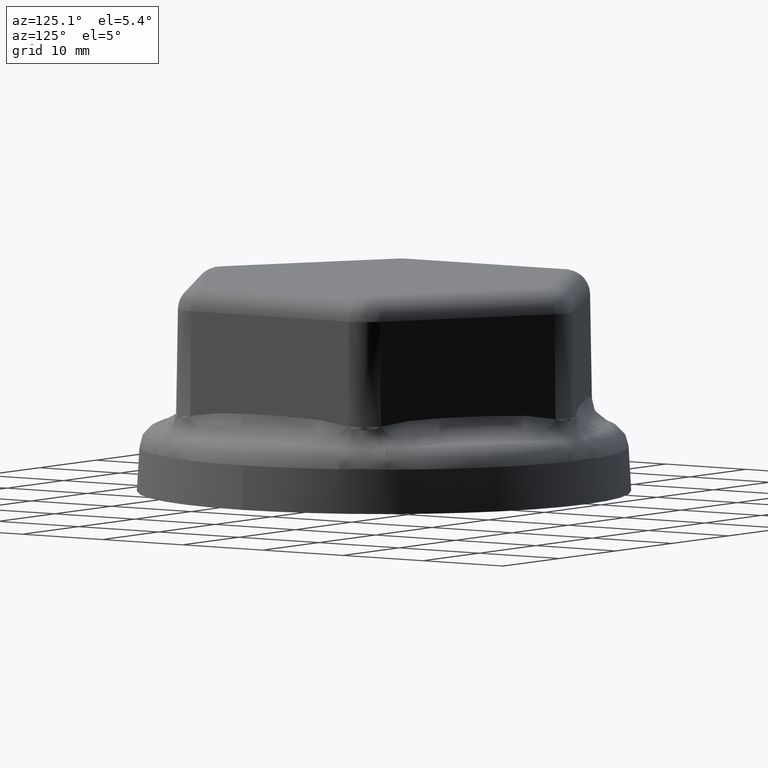
[diagram: clean part render]
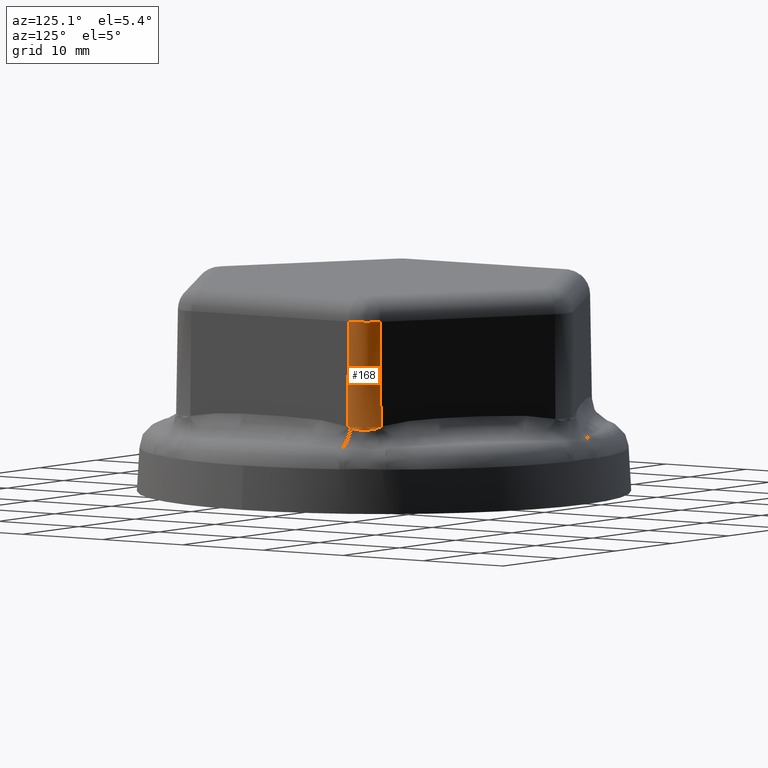
[diagram: same view with one face highlighted and labeled with its STEP entity id]
A machine part, auxiliary view. The second image highlights one B-rep face of the part: STEP entity #168.
In plain terms, the highlighted face is a freeform B-spline surface patch.
Its self-contained STEP definition (entity closure, byte-faithful):
#168 = ADVANCED_FACE( '', ( #395 ), #396, .T. );
#395 = FACE_OUTER_BOUND( '', #3700, .T. );
#396 = B_SPLINE_SURFACE_WITH_KNOTS( '', 1, 3, ( ( #3701, #3702, #3703, #3704 ), ( #3705, #3706, #3707, #3708 ) ), .UNSPECIFIED., .F., .F., .F., ( 2, 2 ), ( 4, 4 ), ( 0.000000000000000, 1.00000000000000 ), ( 3.00000000000000, 7.00000000000000 ), .UNSPECIFIED. );
#3700 = EDGE_LOOP( '', ( #6056, #6057, #6058, #6059, #6060, #6061, #6062, #6063 ) );
#3701 = CARTESIAN_POINT( '', ( 18.7500761524218, 12.8459995228479, 4.40000000000000 ) );
#3702 = CARTESIAN_POINT( '', ( 19.8228869108241, 12.2266119374674, 4.40000000000000 ) );
#3703 = CARTESIAN_POINT( '', ( 20.4999999954851, 11.0538176723918, 4.40000000000000 ) );
#3704 = CARTESIAN_POINT( '', ( 20.5000000000000, 9.81504250946615, 4.40000000000000 ) );
#3705 = CARTESIAN_POINT( '', ( 18.5667979706755, 12.5285524001445, 25.4000000000000 ) );
#3706 = CARTESIAN_POINT( '', ( 19.5272110351913, 11.9740576539199, 25.4000000000000 ) );
#3707 = CARTESIAN_POINT( '', ( 20.1334436322838, 10.9240319945822, 25.3999999999957 ) );
#3708 = CARTESIAN_POINT( '', ( 20.1334436365074, 9.81504250946614, 25.4000000000000 ) );
#6056 = ORIENTED_EDGE( '', *, *, #6505, .T. );
#6057 = ORIENTED_EDGE( '', *, *, #6508, .T. );
#6058 = ORIENTED_EDGE( '', *, *, #6513, .T. );
#6059 = ORIENTED_EDGE( '', *, *, #6514, .T. );
#6060 = ORIENTED_EDGE( '', *, *, #6515, .T. );
#6061 = ORIENTED_EDGE( '', *, *, #6516, .T. );
#6062 = ORIENTED_EDGE( '', *, *, #6517, .F. );
#6063 = ORIENTED_EDGE( '', *, *, #6518, .T. );
#6505 = EDGE_CURVE( '', #6976, #6969, #6977, .T. );
#6508 = EDGE_CURVE( '', #6969, #6979, #6981, .T. );
#6513 = EDGE_CURVE( '', #6979, #6988, #6989, .T. );
#6514 = EDGE_CURVE( '', #6988, #6990, #6991, .T. );
#6515 = EDGE_CURVE( '', #6990, #6992, #6993, .T. );
#6516 = EDGE_CURVE( '', #6992, #6994, #6995, .T. );
#6517 = EDGE_CURVE( '', #6996, #6994, #6997, .T. );
#6518 = EDGE_CURVE( '', #6996, #6976, #6998, .T. );
#6969 = VERTEX_POINT( '', #8845 );
#6976 = VERTEX_POINT( '', #8899 );
#6977 = LINE( '', #8900, #8901 );
#6979 = VERTEX_POINT( '', #8904 );
#6981 = B_SPLINE_CURVE_WITH_KNOTS( '', 3, ( #8906, #8907, #8908, #8909, #8910, #8911, #8912, #8913, #8914, #8915 ), .UNSPECIFIED., .F., .F., ( 4, 2, 1, 1, 1, 1, 4 ), ( -5.99999999935720E-008, 1.25401792727392E-005, 2.51403585454720E-005, 5.03407170909395E-005, 0.000100741434181876, 0.000201542868363748, 0.000403145736727491 ), .UNSPECIFIED. );
#6988 = VERTEX_POINT( '', #8969 );
#6989 = B_SPLINE_CURVE_WITH_KNOTS( '', 3, ( #8970, #8971, #8972, #8973, #8974 ), .UNSPECIFIED., .F., .F., ( 4, 1, 4 ), ( 0.000000000000000, 0.000129380528995710, 0.000258761057991419 ), .UNSPECIFIED. );
#6990 = VERTEX_POINT( '', #8975 );
#6991 = B_SPLINE_CURVE_WITH_KNOTS( '', 3, ( #8976, #8977, #8978, #8979, #8980, #8981, #8982, #8983, #8984, #8985, #8986, #8987, #8988, #8989, #8990, #8991, #8992, #8993, #8994, #8995, #8996, #8997, #8998, #8999, #9000, #9001, #9002, #9003, #9004, #9005, #9006, #9007, #9008, #9009 ), .UNSPECIFIED., .F., .F., ( 4, 2, 2, 1, 2, 2, 1, 2, 2, 2, 2, 1, 2, 1, 2, 2, 2, 2, 4 ), ( 0.000000000000000, 0.000147019453226438, 0.000294038906452876, 0.000441058359679314, 0.000588077812905753, 0.000661587539518973, 0.000735097266132193, 0.000882116719358638, 0.00102913617258508, 0.00117615562581153, 0.00147019453226442, 0.00161721398549088, 0.00176423343871733, 0.00183774316533055, 0.00187449802863717, 0.00191125289194379, 0.00205827234517028, 0.00220529179839676, 0.00235231125162325 ), .UNSPECIFIED. );
#6992 = VERTEX_POINT( '', #9010 );
#6993 = B_SPLINE_CURVE_WITH_KNOTS( '', 3, ( #9011, #9012, #9013, #9014, #9015 ), .UNSPECIFIED., .F., .F., ( 4, 1, 4 ), ( 0.000000000000000, 0.000129380529179010, 0.000258761058358020 ), .UNSPECIFIED. );
#6994 = VERTEX_POINT( '', #9016 );
#6995 = B_SPLINE_CURVE_WITH_KNOTS( '', 3, ( #9017, #9018, #9019, #9020, #9021, #9022, #9023, #9024, #9025, #9026, #9027 ), .UNSPECIFIED., .F., .F., ( 4, 2, 1, 1, 1, 2, 4 ), ( 0.000000000000000, 0.000201602868358575, 0.000302404302537861, 0.000352805019627504, 0.000378005378172319, 0.000390605557444727, 0.000403205736717134 ), .UNSPECIFIED. );
#6996 = VERTEX_POINT( '', #9028 );
#6997 = LINE( '', #9029, #9030 );
#6998 = B_SPLINE_CURVE_WITH_KNOTS( '', 3, ( #9031, #9032, #9033, #9034, #9035, #9036, #9037, #9038, #9039, #9040, #9041, #9042, #9043, #9044, #9045, #9046, #9047, #9048, #9049, #9050, #9051, #9052, #9053, #9054, #9055, #9056, #9057, #9058, #9059, #9060, #9061, #9062, #9063, #9064 ), .UNSPECIFIED., .F., .F., ( 4, 2, 1, 1, 1, 1, 1, 1, 1, 1, 1, 1, 2, 2, 1, 1, 1, 1, 1, 2, 2, 1, 1, 1, 1, 1, 4 ), ( -5.99999999915316E-008, 1.58686226520862E-006, 3.23372453040877E-006, 6.52744906081164E-006, 1.31148981216262E-005, 2.62897962432580E-005, 5.26395924865242E-005, 0.000105339184973068, 0.000210738369946156, 0.000421536739892340, 0.000632335109838524, 0.000843133479784708, 0.00105393184973089, 0.00110663144221744, 0.00115933103470399, 0.00126473021967708, 0.00147552858962326, 0.00168632695956944, 0.00189712532951562, 0.00210792369946181, 0.00221332288443490, 0.00231872206940799, 0.00252952043935418, 0.00274031880930036, 0.00295111717924654, 0.00316191554919273, 0.00337271391913891 ), .UNSPECIFIED. );
#8845 = CARTESIAN_POINT( '', ( 20.4245881498570, 9.81504250919130, 8.72034200119673 ) );
#8899 = CARTESIAN_POINT( '', ( 20.2374124438580, 9.81504250850911, 19.4436310160924 ) );
#8900 = CARTESIAN_POINT( '', ( 20.5000000000000, 9.81504250946615, 4.40000000000000 ) );
#8901 = VECTOR( '', #9774, 1000.00000000000 );
#8904 = CARTESIAN_POINT( '', ( 20.4056246553358, 10.1926601192659, 8.58027017000773 ) );
#8906 = CARTESIAN_POINT( '', ( 20.4245881498598, 9.81504250946615, 8.72034200103530 ) );
#8907 = CARTESIAN_POINT( '', ( 20.4246146984334, 9.81895675369825, 8.71881934242879 ) );
#8908 = CARTESIAN_POINT( '', ( 20.4246344300040, 9.82288328763254, 8.71729355520004 ) );
#8909 = CARTESIAN_POINT( '', ( 20.4246598331519, 9.83072490528885, 8.71424993195695 ) );
#8910 = CARTESIAN_POINT( '', ( 20.4246770591625, 9.84248810078313, 8.70968939741008 ) );
#8911 = CARTESIAN_POINT( '', ( 20.4245710738748, 9.86994128119892, 8.69908337602101 ) );
#8912 = CARTESIAN_POINT( '', ( 20.4237740337628, 9.92487326431368, 8.67801963146293 ) );
#8913 = CARTESIAN_POINT( '', ( 20.4198348898030, 10.0348614990073, 8.63654469823896 ) );
#8914 = CARTESIAN_POINT( '', ( 20.4124158336221, 10.1294241564701, 8.60231596088999 ) );
#8915 = CARTESIAN_POINT( '', ( 20.4056246553357, 10.1926601192656, 8.58027017000722 ) );
#8969 = CARTESIAN_POINT( '', ( 20.3699417653243, 10.4379299291018, 8.50592814369450 ) );
#8970 = CARTESIAN_POINT( '', ( 20.4056246553358, 10.1926601192659, 8.58027017000773 ) );
#8971 = CARTESIAN_POINT( '', ( 20.4012668892831, 10.2332373976643, 8.56612381792238 ) );
#8972 = CARTESIAN_POINT( '', ( 20.3910032599094, 10.3146482322465, 8.53941968745791 ) );
#8973 = CARTESIAN_POINT( '', ( 20.3775250396434, 10.3967026371197, 8.51638177742967 ) );
#8974 = CARTESIAN_POINT( '', ( 20.3699417653242, 10.4379299291015, 8.50592814369392 ) );
#8975 = CARTESIAN_POINT( '', ( 19.2244833644493, 12.4219220776004, 8.50592814360921 ) );
#8976 = CARTESIAN_POINT( '', ( 20.3699417653243, 10.4379299291018, 8.50592814369450 ) );
#8977 = CARTESIAN_POINT( '', ( 20.3612703335027, 10.4850731071783, 8.49397447188638 ) );
#8978 = CARTESIAN_POINT( '', ( 20.3515649726921, 10.5321202281563, 8.48320907779214 ) );
#8979 = CARTESIAN_POINT( '', ( 20.3300950867656, 10.6259511060023, 8.46361482801591 ) );
#8980 = CARTESIAN_POINT( '', ( 20.3183305946093, 10.6727353415834, 8.45478877304420 ) );
#8981 = CARTESIAN_POINT( '', ( 20.2927410264974, 10.7659934911429, 8.43879538688980 ) );
#8982 = CARTESIAN_POINT( '', ( 20.2650909052415, 10.8589416650849, 8.42446273706561 ) );
#8983 = CARTESIAN_POINT( '', ( 20.2332944297090, 10.9512006146276, 8.41308116688594 ) );
#8984 = CARTESIAN_POINT( '', ( 20.2078732514892, 11.0201157550815, 8.40556089877583 ) );
#8985 = CARTESIAN_POINT( '', ( 20.1991348308377, 11.0430468045725, 8.40322335585429 ) );
#8986 = CARTESIAN_POINT( '', ( 20.1811384224254, 11.0887883506561, 8.39887970104793 ) );
#8987 = CARTESIAN_POINT( '', ( 20.1534039275415, 11.1571201009072, 8.39287117037393 ) );
#8988 = CARTESIAN_POINT( '', ( 20.1234536396193, 11.2246075939046, 8.38832720434680 ) );
#8989 = CARTESIAN_POINT( '', ( 20.0815447587531, 11.3138334763500, 8.38350899757685 ) );
#8990 = CARTESIAN_POINT( '', ( 20.0597073741901, 11.3578445834943, 8.38173232044545 ) );
#8991 = CARTESIAN_POINT( '', ( 20.0143168407512, 11.4446587747440, 8.37938273894726 ) );
#8992 = CARTESIAN_POINT( '', ( 19.9907612526114, 11.4874669432806, 8.37880972268962 ) );
#8993 = CARTESIAN_POINT( '', ( 19.9175490649402, 11.6141201993134, 8.37885372265546 ) );
#8994 = CARTESIAN_POINT( '', ( 19.8653521706344, 11.6961981540822, 8.38121813988781 ) );
#8995 = CARTESIAN_POINT( '', ( 19.7820183656657, 11.8158032694189, 8.38838187093868 ) );
#8996 = CARTESIAN_POINT( '', ( 19.7247803959561, 11.8943673275565, 8.39437099050690 ) );
#8997 = CARTESIAN_POINT( '', ( 19.6641625144346, 11.9705691886313, 8.40292761609816 ) );
#8998 = CARTESIAN_POINT( '', ( 19.6174182284606, 12.0268219944813, 8.41039300590302 ) );
#8999 = CARTESIAN_POINT( '', ( 19.5937257493632, 12.0547236435162, 8.41438830742897 ) );
#9000 = CARTESIAN_POINT( '', ( 19.5695491854150, 12.0822847868904, 8.41879948691416 ) );
#9001 = CARTESIAN_POINT( '', ( 19.5533234296352, 12.1005827683373, 8.42183561506171 ) );
#9002 = CARTESIAN_POINT( '', ( 19.5451525232190, 12.1096981144459, 8.42340212211638 ) );
#9003 = CARTESIAN_POINT( '', ( 19.5040758131115, 12.1550292859621, 8.43147100907484 ) );
#9004 = CARTESIAN_POINT( '', ( 19.4705708873976, 12.1904362774271, 8.43866562394218 ) );
#9005 = CARTESIAN_POINT( '', ( 19.4023214039778, 12.2595356132057, 8.45471326448761 ) );
#9006 = CARTESIAN_POINT( '', ( 19.3675765893548, 12.2932280397552, 8.46356498406429 ) );
#9007 = CARTESIAN_POINT( '', ( 19.2969015687822, 12.3588822140820, 8.48319756510399 ) );
#9008 = CARTESIAN_POINT( '', ( 19.2609708847933, 12.3908441757306, 8.49397576689740 ) );
#9009 = CARTESIAN_POINT( '', ( 19.2244833644493, 12.4219220776004, 8.50592814360926 ) );
#9010 = CARTESIAN_POINT( '', ( 19.0299149230844, 12.5754592719803, 8.58027017000970 ) );
#9011 = CARTESIAN_POINT( '', ( 19.2244833644493, 12.4219220776004, 8.50592814360921 ) );
#9012 = CARTESIAN_POINT( '', ( 19.1925711193798, 12.4491030318387, 8.51638177735347 ) );
#9013 = CARTESIAN_POINT( '', ( 19.1282489693902, 12.5018029487402, 8.53941904626629 ) );
#9014 = CARTESIAN_POINT( '', ( 19.0628769940144, 12.5513966966414, 8.56612381790462 ) );
#9015 = CARTESIAN_POINT( '', ( 19.0299149230844, 12.5754592719803, 8.58027017000972 ) );
#9016 = CARTESIAN_POINT( '', ( 18.7123702273339, 12.7806909448493, 8.72034200307389 ) );
#9017 = CARTESIAN_POINT( '', ( 19.0299149230844, 12.5754592719803, 8.58027017000966 ) );
#9018 = CARTESIAN_POINT( '', ( 18.9785465620152, 12.6129585862950, 8.60231596089128 ) );
#9019 = CARTESIAN_POINT( '', ( 18.9264238050018, 12.6487628661987, 8.62513511912223 ) );
#9020 = CARTESIAN_POINT( '', ( 18.8470580334835, 12.7000399757522, 8.66024453785097 ) );
#9021 = CARTESIAN_POINT( '', ( 18.8070793931155, 12.7250705222351, 8.67801963145959 ) );
#9022 = CARTESIAN_POINT( '', ( 18.7599054203151, 12.7532267707771, 8.69908337601647 ) );
#9023 = CARTESIAN_POINT( '', ( 18.7361832613048, 12.7670451469366, 8.70968939740493 ) );
#9024 = CARTESIAN_POINT( '', ( 18.7259874221721, 12.7729118265209, 8.71424993195156 ) );
#9025 = CARTESIAN_POINT( '', ( 18.7191836805012, 12.7768106355776, 8.71729355519448 ) );
#9026 = CARTESIAN_POINT( '', ( 18.7157733365801, 12.7787568145034, 8.71881934242316 ) );
#9027 = CARTESIAN_POINT( '', ( 18.7123702273518, 12.7806909448803, 8.72034200102957 ) );
#9028 = CARTESIAN_POINT( '', ( 18.6187823743508, 12.6185920285113, 19.4436310160924 ) );
#9029 = CARTESIAN_POINT( '', ( 18.7500761524218, 12.8459995228479, 4.40000000000000 ) );
#9030 = VECTOR( '', #9785, 1000.00000000000 );
#9031 = CARTESIAN_POINT( '', ( 18.6187823743508, 12.6185920285113, 19.4436310160924 ) );
#9032 = CARTESIAN_POINT( '', ( 18.6192577825351, 12.6183175514639, 19.4436310161818 ) );
#9033 = CARTESIAN_POINT( '', ( 18.6197469101330, 12.6180349827403, 19.4436310160359 ) );
#9034 = CARTESIAN_POINT( '', ( 18.6207119544569, 12.6174771300249, 19.4436310158098 ) );
#9035 = CARTESIAN_POINT( '', ( 18.6221592309306, 12.6166400051083, 19.4436310153011 ) );
#9036 = CARTESIAN_POINT( '', ( 18.6255341799474, 12.6146842935231, 19.4436310129303 ) );
#9037 = CARTESIAN_POINT( '', ( 18.6322759655721, 12.6107631961952, 19.4436310034714 ) );
#9038 = CARTESIAN_POINT( '', ( 18.6457271290613, 12.6028823548451, 19.4436309658356 ) );
#9039 = CARTESIAN_POINT( '', ( 18.6725001542695, 12.5869664780288, 19.4436308169092 ) );
#9040 = CARTESIAN_POINT( '', ( 18.7255315416905, 12.5545209817874, 19.4436302343096 ) );
#9041 = CARTESIAN_POINT( '', ( 18.8295546092970, 12.4871976107310, 19.4436280107671 ) );
#9042 = CARTESIAN_POINT( '', ( 18.9724306140722, 12.3841901983688, 19.4436222902473 ) );
#9043 = CARTESIAN_POINT( '', ( 19.1349230440848, 12.2498978417277, 19.4436129469188 ) );
#9044 = CARTESIAN_POINT( '', ( 19.2885440943349, 12.1050262440582, 19.4436026788721 ) );
#9045 = CARTESIAN_POINT( '', ( 19.3850238191405, 12.0013684350595, 19.4435961720171 ) );
#9046 = CARTESIAN_POINT( '', ( 19.4434367583357, 11.9343321638357, 19.4435924716650 ) );
#9047 = CARTESIAN_POINT( '', ( 19.4550275164814, 11.9208091612573, 19.4435917495899 ) );
#9048 = CARTESIAN_POINT( '', ( 19.4780080009826, 11.8935492999481, 19.4435903482281 ) );
#9049 = CARTESIAN_POINT( '', ( 19.5121009597704, 11.8524293479811, 19.4435883148984 ) );
#9050 = CARTESIAN_POINT( '', ( 19.5890294476217, 11.7548854588131, 19.4435841010700 ) );
#9051 = CARTESIAN_POINT( '', ( 19.6915513016718, 11.6110431312972, 19.4435798554341 ) );
#9052 = CARTESIAN_POINT( '', ( 19.8029802854429, 11.4313665696024, 19.4435781162006 ) );
#9053 = CARTESIAN_POINT( '', ( 19.9028424892898, 11.2446427980883, 19.4435799114621 ) );
#9054 = CARTESIAN_POINT( '', ( 19.9616135512207, 11.1154057541381, 19.4435833626024 ) );
#9055 = CARTESIAN_POINT( '', ( 20.0026854797577, 11.0166463027605, 19.4435866717107 ) );
#9056 = CARTESIAN_POINT( '', ( 20.0158021778238, 10.9835942508546, 19.4435878880964 ) );
#9057 = CARTESIAN_POINT( '', ( 20.0408858056973, 10.9172758773111, 19.4435905070554 ) );
#9058 = CARTESIAN_POINT( '', ( 20.0767951939948, 10.8174536223476, 19.4435947144495 ) );
#9059 = CARTESIAN_POINT( '', ( 20.1281734959759, 10.6493817367331, 19.4436028041377 ) );
#9060 = CARTESIAN_POINT( '', ( 20.1764403778382, 10.4450064814449, 19.4436130127478 ) );
#9061 = CARTESIAN_POINT( '', ( 20.2113013043469, 10.2379384422639, 19.4436223114770 ) );
#9062 = CARTESIAN_POINT( '', ( 20.2325600268949, 10.0281381997062, 19.4436291561565 ) );
#9063 = CARTESIAN_POINT( '', ( 20.2374124435898, 9.88639929871576, 19.4436310160939 ) );
#9064 = CARTESIAN_POINT( '', ( 20.2374124438580, 9.81504250850911, 19.4436310160924 ) );
#9774 = DIRECTION( '', ( 0.0174524064372835, 6.36079682464561E-011, -0.999847695156391 ) );
#9785 = DIRECTION( '', ( 0.00872620321864176, 0.0151142273318586, -0.999847695156391 ) );